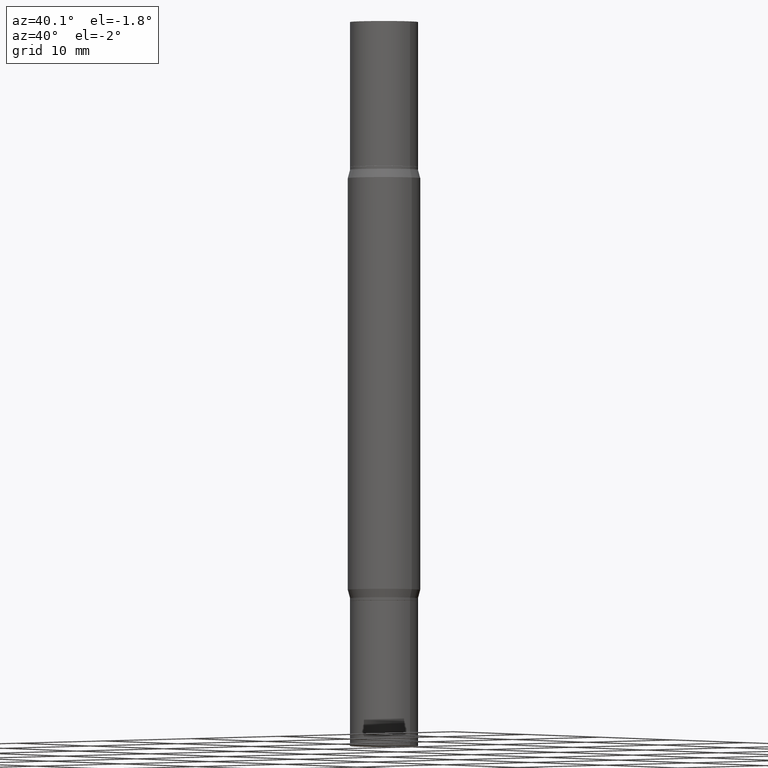
[diagram: clean part render]
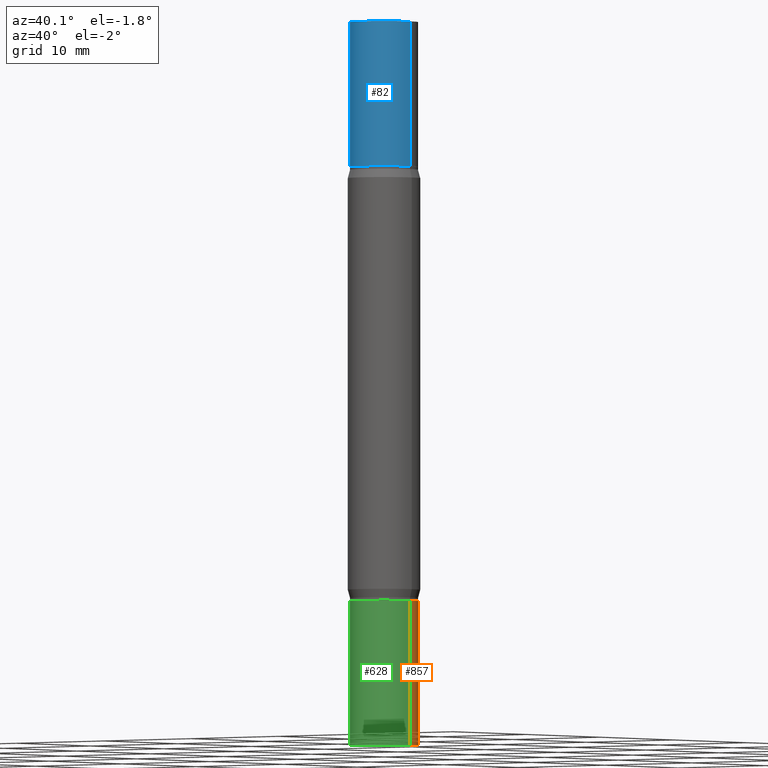
[diagram: same view with three faces highlighted in distinct colors, each labeled with its STEP entity id]
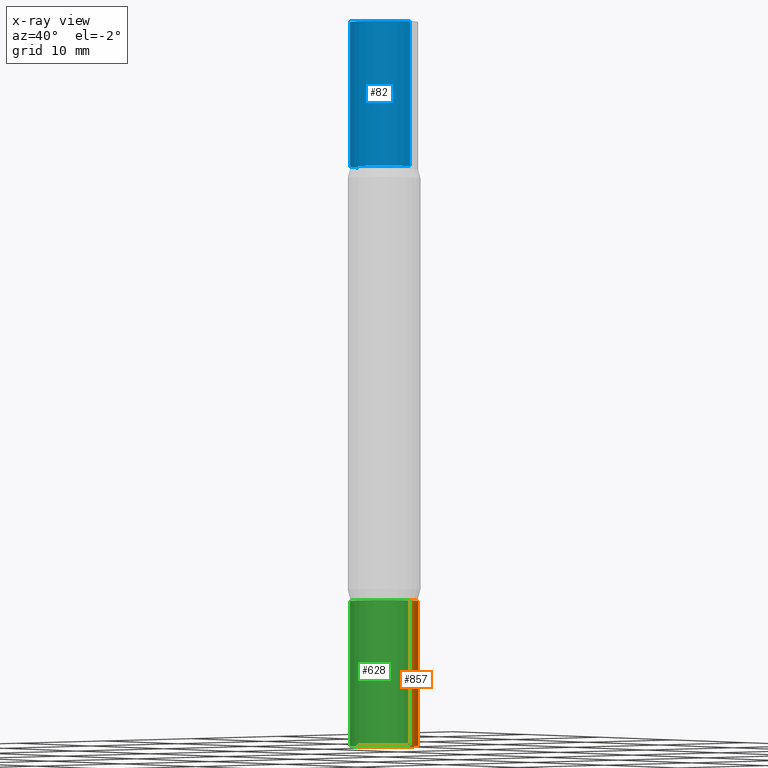
[diagram: x-ray of the same camera — body ghosted, the three highlighted faces saturated]
A machine part, auxiliary view with three faces highlighted in distinct colors.
The next image is the same camera in x-ray (body ghosted, the three faces saturated) — at least one of them is partly hidden behind the body in this view.
Their STEP definitions:

[orange] entity #857 — the highlighted cylindrical surface (edge-blend (fillet) strip) has radius 2.9769 mm, axis along (-0, 0, 1).
#18 = EDGE_CURVE ( 'NONE', #370, #553, #373, .T. ) ;
#28 = DIRECTION ( 'NONE',  ( 1.000000000000000000, -6.982962677686266711E-15, 4.876176775795935793E-29 ) ) ;
#71 = CARTESIAN_POINT ( 'NONE',  ( 6.113672015462842613E-29, -8.728703347107864943E-15, -2.500000000000000000 ) ) ;
#93 = AXIS2_PLACEMENT_3D ( 'NONE', #71, #368, #959 ) ;
#110 = VECTOR ( 'NONE', #496, 39.37007874015748143 ) ;
#125 = DIRECTION ( 'NONE',  ( -2.445468806185136877E-29, 3.491481338843145188E-15, 1.000000000000000000 ) ) ;
#168 = CYLINDRICAL_SURFACE ( 'NONE', #770, 0.1171999999999999986 ) ;
#270 = CARTESIAN_POINT ( 'NONE',  ( -0.1171999999999999986, 8.327560863108374081E-16, -5.764991925778749121E-30 ) ) ;
#271 = LINE ( 'NONE', #881, #110 ) ;
#293 = EDGE_CURVE ( 'NONE', #517, #751, #433, .T. ) ;
#298 = ORIENTED_EDGE ( 'NONE', *, *, #597, .T. ) ;
#308 = VECTOR ( 'NONE', #125, 39.37007874015748143 ) ;
#312 = EDGE_LOOP ( 'NONE', ( #594, #298, #796, #685 ) ) ;
#368 = DIRECTION ( 'NONE',  ( -2.445468806185136597E-29, 3.491481338843145583E-15, 1.000000000000000000 ) ) ;
#370 = VERTEX_POINT ( 'NONE', #475 ) ;
#373 = CIRCLE ( 'NONE', #93, 0.1171999999999999986 ) ;
#382 = DIRECTION ( 'NONE',  ( -2.445468806185136597E-29, 3.491481338843145583E-15, 1.000000000000000000 ) ) ;
#384 = AXIS2_PLACEMENT_3D ( 'NONE', #470, #382, #689 ) ;
#398 = DIRECTION ( 'NONE',  ( -2.445468806185136597E-29, 3.491481338843145583E-15, 1.000000000000000000 ) ) ;
#425 = CARTESIAN_POINT ( 'NONE',  ( -0.1171999999999999986, -7.023076926086241238E-15, -2.500000000000000000 ) ) ;
#433 = CIRCLE ( 'NONE', #384, 0.1171999999999999986 ) ;
#470 = CARTESIAN_POINT ( 'NONE',  ( 4.890937612370273754E-29, -6.982962677686291954E-15, -2.000000000000000444 ) ) ;
#473 = CARTESIAN_POINT ( 'NONE',  ( 0.000000000000000000, 0.000000000000000000, 0.000000000000000000 ) ) ;
#475 = CARTESIAN_POINT ( 'NONE',  ( 0.1171999999999999986, -9.547106572932694215E-15, -2.500000000000000000 ) ) ;
#496 = DIRECTION ( 'NONE',  ( -2.445468806185136877E-29, 3.491481338843145188E-15, 1.000000000000000000 ) ) ;
#507 = CARTESIAN_POINT ( 'NONE',  ( 0.1171999999999999986, -7.801365903511122804E-15, -2.000000000000000444 ) ) ;
#512 = LINE ( 'NONE', #270, #308 ) ;
#517 = VERTEX_POINT ( 'NONE', #507 ) ;
#553 = VERTEX_POINT ( 'NONE', #425 ) ;
#594 = ORIENTED_EDGE ( 'NONE', *, *, #18, .T. ) ;
#597 = EDGE_CURVE ( 'NONE', #553, #751, #512, .T. ) ;
#685 = ORIENTED_EDGE ( 'NONE', *, *, #926, .F. ) ;
#689 = DIRECTION ( 'NONE',  ( 1.000000000000000000, -6.982962677686269866E-15, 0.000000000000000000 ) ) ;
#746 = CARTESIAN_POINT ( 'NONE',  ( -0.1171999999999999986, -7.023076926086241238E-15, -2.000000000000000444 ) ) ;
#751 = VERTEX_POINT ( 'NONE', #746 ) ;
#770 = AXIS2_PLACEMENT_3D ( 'NONE', #473, #398, #28 ) ;
#778 = FACE_OUTER_BOUND ( 'NONE', #312, .T. ) ;
#796 = ORIENTED_EDGE ( 'NONE', *, *, #293, .F. ) ;
#857 = ADVANCED_FACE ( 'NONE', ( #778 ), #168, .T. ) ;
#881 = CARTESIAN_POINT ( 'NONE',  ( 0.1171999999999999986, -8.184032258248304553E-16, 5.714879181232836475E-30 ) ) ;
#926 = EDGE_CURVE ( 'NONE', #370, #517, #271, .T. ) ;
#959 = DIRECTION ( 'NONE',  ( 1.000000000000000000, -6.982962677686261977E-15, 0.000000000000000000 ) ) ;

[blue] entity #82 — the highlighted cylindrical surface (edge-blend (fillet) strip) has radius 2.9769 mm, axis along (-0, -0, -1).
#82 = ADVANCED_FACE ( 'NONE', ( #132 ), #432, .T. ) ;
#114 = LINE ( 'NONE', #410, #260 ) ;
#123 = AXIS2_PLACEMENT_3D ( 'NONE', #631, #939, #256 ) ;
#132 = FACE_OUTER_BOUND ( 'NONE', #495, .T. ) ;
#150 = DIRECTION ( 'NONE',  ( 2.445468806185136597E-29, 3.491805094961124077E-15, 1.000000000000000000 ) ) ;
#156 = EDGE_CURVE ( 'NONE', #177, #188, #691, .T. ) ;
#159 = CARTESIAN_POINT ( 'NONE',  ( 6.113672015462842613E-29, 4.046951474745467748E-19, 5.463695987328526437E-16 ) ) ;
#173 = CARTESIAN_POINT ( 'NONE',  ( -0.1171999999999999986, -7.925057676916510614E-15, -2.499999999999999556 ) ) ;
#177 = VERTEX_POINT ( 'NONE', #765 ) ;
#184 = VERTEX_POINT ( 'NONE', #831 ) ;
#188 = VERTEX_POINT ( 'NONE', #609 ) ;
#207 = DIRECTION ( 'NONE',  ( -2.445468806185136877E-29, -3.491805094961123683E-15, -1.000000000000000000 ) ) ;
#217 = ORIENTED_EDGE ( 'NONE', *, *, #156, .F. ) ;
#242 = EDGE_CURVE ( 'NONE', #177, #184, #484, .T. ) ;
#256 = DIRECTION ( 'NONE',  ( 1.000000000000000000, -6.982962677686265922E-15, 0.000000000000000000 ) ) ;
#260 = VECTOR ( 'NONE', #207, 39.37007874015748143 ) ;
#347 = VERTEX_POINT ( 'NONE', #874 ) ;
#396 = DIRECTION ( 'NONE',  ( -2.445468806185136877E-29, -3.491805094961123683E-15, -1.000000000000000000 ) ) ;
#410 = CARTESIAN_POINT ( 'NONE',  ( 0.1171999999999999986, -9.547511268080165952E-15, -2.499999999999999556 ) ) ;
#432 = CYLINDRICAL_SURFACE ( 'NONE', #766, 0.1171999999999999986 ) ;
#465 = EDGE_CURVE ( 'NONE', #184, #347, #784, .T. ) ;
#484 = LINE ( 'NONE', #173, #822 ) ;
#495 = EDGE_LOOP ( 'NONE', ( #217, #563, #953, #759 ) ) ;
#540 = DIRECTION ( 'NONE',  ( 1.000000000000000000, -6.982962677686266711E-15, 0.000000000000000000 ) ) ;
#543 = AXIS2_PLACEMENT_3D ( 'NONE', #159, #150, #540 ) ;
#563 = ORIENTED_EDGE ( 'NONE', *, *, #242, .T. ) ;
#609 = CARTESIAN_POINT ( 'NONE',  ( 0.1171999999999999986, -8.179985306773559567E-16, 5.463695987328526437E-16 ) ) ;
#631 = CARTESIAN_POINT ( 'NONE',  ( 4.890937612370273754E-29, -1.745497852333085568E-15, -0.4999999999999993339 ) ) ;
#691 = CIRCLE ( 'NONE', #543, 0.1171999999999999986 ) ;
#759 = ORIENTED_EDGE ( 'NONE', *, *, #877, .F. ) ;
#765 = CARTESIAN_POINT ( 'NONE',  ( -0.1171999999999999986, -6.849621325398194571E-17, 5.463695987328557991E-16 ) ) ;
#766 = AXIS2_PLACEMENT_3D ( 'NONE', #821, #977, #972 ) ;
#784 = CIRCLE ( 'NONE', #123, 0.1171999999999999986 ) ;
#821 = CARTESIAN_POINT ( 'NONE',  ( 0.000000000000000000, -8.729108042255335103E-15, -2.499999999999999556 ) ) ;
#822 = VECTOR ( 'NONE', #396, 39.37007874015748143 ) ;
#831 = CARTESIAN_POINT ( 'NONE',  ( -0.1171999999999999986, -6.849621325398205664E-17, -0.4999999999999993339 ) ) ;
#874 = CARTESIAN_POINT ( 'NONE',  ( 0.1171999999999999986, -2.563901078157915826E-15, -0.4999999999999993339 ) ) ;
#877 = EDGE_CURVE ( 'NONE', #188, #347, #114, .T. ) ;
#939 = DIRECTION ( 'NONE',  ( 2.445468806185136597E-29, 3.491805094961124077E-15, 1.000000000000000000 ) ) ;
#953 = ORIENTED_EDGE ( 'NONE', *, *, #465, .T. ) ;
#972 = DIRECTION ( 'NONE',  ( 1.000000000000000000, -6.982962677686269866E-15, 0.000000000000000000 ) ) ;
#977 = DIRECTION ( 'NONE',  ( -2.445468806185136597E-29, -3.491805094961124077E-15, -1.000000000000000000 ) ) ;

[green] entity #628 — the highlighted cylindrical surface (edge-blend (fillet) strip) has radius 2.9769 mm, axis along (-0, 0, 1).
#45 = CYLINDRICAL_SURFACE ( 'NONE', #386, 0.1171999999999999986 ) ;
#67 = CIRCLE ( 'NONE', #805, 0.1171999999999999986 ) ;
#110 = VECTOR ( 'NONE', #496, 39.37007874015748143 ) ;
#112 = DIRECTION ( 'NONE',  ( -2.445468806185136597E-29, 3.491481338843145583E-15, 1.000000000000000000 ) ) ;
#125 = DIRECTION ( 'NONE',  ( -2.445468806185136877E-29, 3.491481338843145188E-15, 1.000000000000000000 ) ) ;
#195 = DIRECTION ( 'NONE',  ( 1.000000000000000000, -6.982962677686261977E-15, 0.000000000000000000 ) ) ;
#253 = DIRECTION ( 'NONE',  ( 1.000000000000000000, -6.982962677686266711E-15, 4.876176775795935793E-29 ) ) ;
#264 = CARTESIAN_POINT ( 'NONE',  ( 0.000000000000000000, 0.000000000000000000, 0.000000000000000000 ) ) ;
#270 = CARTESIAN_POINT ( 'NONE',  ( -0.1171999999999999986, 8.327560863108374081E-16, -5.764991925778749121E-30 ) ) ;
#271 = LINE ( 'NONE', #881, #110 ) ;
#273 = CARTESIAN_POINT ( 'NONE',  ( 4.890937612370273754E-29, -6.982962677686291954E-15, -2.000000000000000444 ) ) ;
#288 = DIRECTION ( 'NONE',  ( -2.445468806185136597E-29, 3.491481338843145583E-15, 1.000000000000000000 ) ) ;
#308 = VECTOR ( 'NONE', #125, 39.37007874015748143 ) ;
#328 = ORIENTED_EDGE ( 'NONE', *, *, #597, .F. ) ;
#359 = CARTESIAN_POINT ( 'NONE',  ( 6.113672015462842613E-29, -8.728703347107864943E-15, -2.500000000000000000 ) ) ;
#367 = EDGE_LOOP ( 'NONE', ( #328, #885, #908, #813 ) ) ;
#370 = VERTEX_POINT ( 'NONE', #475 ) ;
#386 = AXIS2_PLACEMENT_3D ( 'NONE', #264, #112, #253 ) ;
#425 = CARTESIAN_POINT ( 'NONE',  ( -0.1171999999999999986, -7.023076926086241238E-15, -2.500000000000000000 ) ) ;
#468 = CIRCLE ( 'NONE', #479, 0.1171999999999999986 ) ;
#475 = CARTESIAN_POINT ( 'NONE',  ( 0.1171999999999999986, -9.547106572932694215E-15, -2.500000000000000000 ) ) ;
#479 = AXIS2_PLACEMENT_3D ( 'NONE', #359, #288, #195 ) ;
#496 = DIRECTION ( 'NONE',  ( -2.445468806185136877E-29, 3.491481338843145188E-15, 1.000000000000000000 ) ) ;
#505 = DIRECTION ( 'NONE',  ( -2.445468806185136597E-29, 3.491481338843145583E-15, 1.000000000000000000 ) ) ;
#507 = CARTESIAN_POINT ( 'NONE',  ( 0.1171999999999999986, -7.801365903511122804E-15, -2.000000000000000444 ) ) ;
#512 = LINE ( 'NONE', #270, #308 ) ;
#517 = VERTEX_POINT ( 'NONE', #507 ) ;
#525 = EDGE_CURVE ( 'NONE', #553, #370, #468, .T. ) ;
#553 = VERTEX_POINT ( 'NONE', #425 ) ;
#559 = FACE_OUTER_BOUND ( 'NONE', #367, .T. ) ;
#597 = EDGE_CURVE ( 'NONE', #553, #751, #512, .T. ) ;
#628 = ADVANCED_FACE ( 'NONE', ( #559 ), #45, .T. ) ;
#661 = DIRECTION ( 'NONE',  ( 1.000000000000000000, -6.982962677686269866E-15, 0.000000000000000000 ) ) ;
#746 = CARTESIAN_POINT ( 'NONE',  ( -0.1171999999999999986, -7.023076926086241238E-15, -2.000000000000000444 ) ) ;
#751 = VERTEX_POINT ( 'NONE', #746 ) ;
#805 = AXIS2_PLACEMENT_3D ( 'NONE', #273, #505, #661 ) ;
#813 = ORIENTED_EDGE ( 'NONE', *, *, #858, .F. ) ;
#858 = EDGE_CURVE ( 'NONE', #751, #517, #67, .T. ) ;
#881 = CARTESIAN_POINT ( 'NONE',  ( 0.1171999999999999986, -8.184032258248304553E-16, 5.714879181232836475E-30 ) ) ;
#885 = ORIENTED_EDGE ( 'NONE', *, *, #525, .T. ) ;
#908 = ORIENTED_EDGE ( 'NONE', *, *, #926, .T. ) ;
#926 = EDGE_CURVE ( 'NONE', #370, #517, #271, .T. ) ;